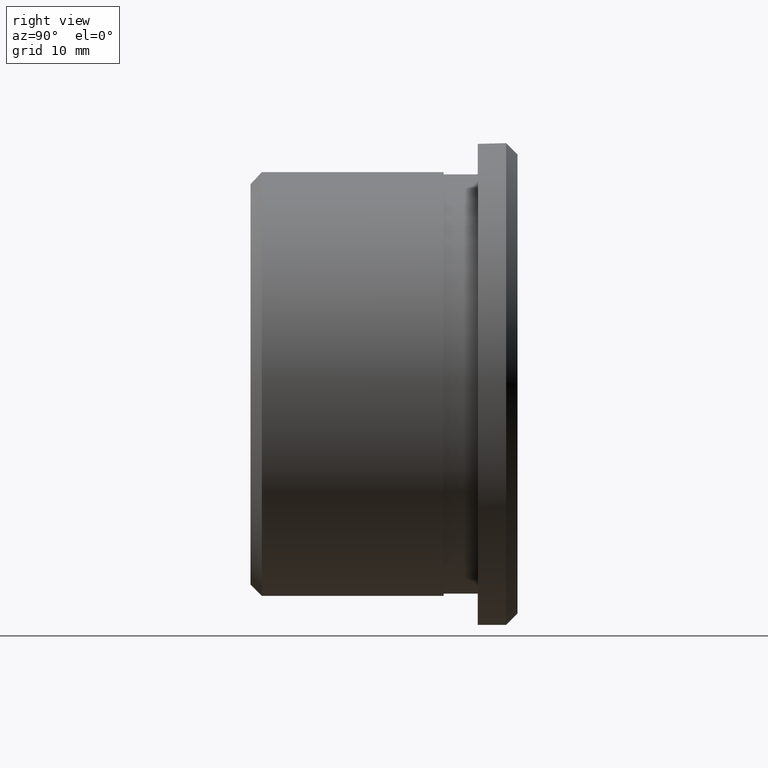
[diagram: clean part render]
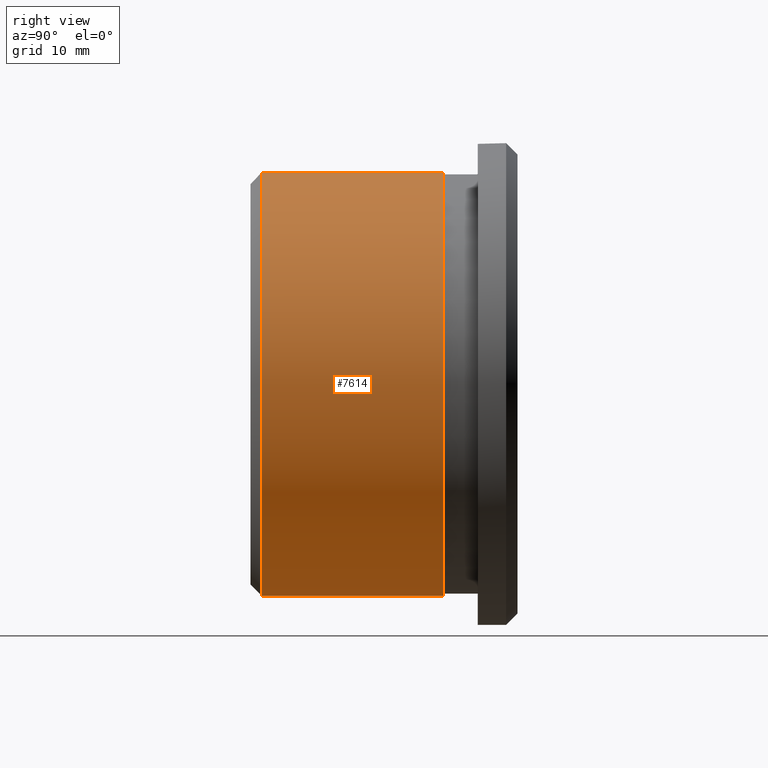
[diagram: same view with one face highlighted and labeled with its STEP entity id]
A machine part, right view. The second image highlights one B-rep face of the part: STEP entity #7614.
In plain terms, the highlighted cylindrical surface (bore or boss wall) has radius 18.65 mm, axis along (-0, -1, -0).
Its self-contained STEP definition (entity closure, byte-faithful):
#754 = CARTESIAN_POINT ( 'NONE',  ( 0.0000000000000000000, 17.00000000000000000, -18.64999999999999900 ) ) ;
#2760 = CARTESIAN_POINT ( 'NONE',  ( 0.0000000000000000000, 0.9999999999999904500, 0.0000000000000000000 ) ) ;
#3226 = DIRECTION ( 'NONE',  ( -0.0000000000000000000, -1.000000000000000000, -0.0000000000000000000 ) ) ;
#3293 = DIRECTION ( 'NONE',  ( -0.0000000000000000000, -1.000000000000000000, -0.0000000000000000000 ) ) ;
#3466 = EDGE_CURVE ( 'NONE', #13562, #13562, #6900, .T. ) ;
#4578 = ORIENTED_EDGE ( 'NONE', *, *, #11180, .T. ) ;
#5419 = CYLINDRICAL_SURFACE ( 'NONE', #15528, 18.64999999999999900 ) ;
#6280 = ORIENTED_EDGE ( 'NONE', *, *, #3466, .T. ) ;
#6349 = DIRECTION ( 'NONE',  ( 0.0000000000000000000, 0.0000000000000000000, -1.000000000000000000 ) ) ;
#6413 = CARTESIAN_POINT ( 'NONE',  ( 0.0000000000000000000, 17.00000000000000000, 0.0000000000000000000 ) ) ;
#6900 = CIRCLE ( 'NONE', #15381, 18.64999999999999900 ) ;
#6949 = CARTESIAN_POINT ( 'NONE',  ( 0.0000000000000000000, 0.9999999999999904500, -18.64999999999999900 ) ) ;
#7353 = DIRECTION ( 'NONE',  ( 0.0000000000000000000, 0.0000000000000000000, -1.000000000000000000 ) ) ;
#7614 = ADVANCED_FACE ( 'NONE', ( #14526, #15678 ), #5419, .T. ) ;
#11180 = EDGE_CURVE ( 'NONE', #14952, #14952, #18841, .T. ) ;
#12213 = CARTESIAN_POINT ( 'NONE',  ( 0.0000000000000000000, 0.0000000000000000000, 0.0000000000000000000 ) ) ;
#13562 = VERTEX_POINT ( 'NONE', #754 ) ;
#13662 = DIRECTION ( 'NONE',  ( 0.0000000000000000000, 0.0000000000000000000, -1.000000000000000000 ) ) ;
#14526 = FACE_OUTER_BOUND ( 'NONE', #14611, .T. ) ;
#14611 = EDGE_LOOP ( 'NONE', ( #4578 ) ) ;
#14952 = VERTEX_POINT ( 'NONE', #6949 ) ;
#15381 = AXIS2_PLACEMENT_3D ( 'NONE', #6413, #3226, #13662 ) ;
#15528 = AXIS2_PLACEMENT_3D ( 'NONE', #12213, #3293, #6349 ) ;
#15678 = FACE_OUTER_BOUND ( 'NONE', #16461, .T. ) ;
#16461 = EDGE_LOOP ( 'NONE', ( #6280 ) ) ;
#17187 = AXIS2_PLACEMENT_3D ( 'NONE', #2760, #18993, #7353 ) ;
#18841 = CIRCLE ( 'NONE', #17187, 18.64999999999999900 ) ;
#18993 = DIRECTION ( 'NONE',  ( 0.0000000000000000000, 1.000000000000000000, 0.0000000000000000000 ) ) ;